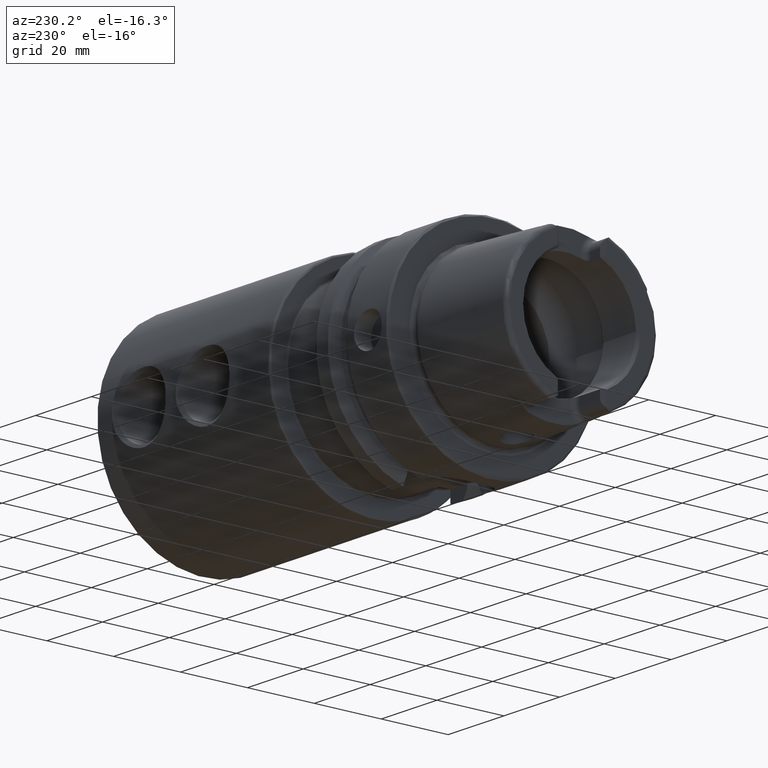
[diagram: clean part render]
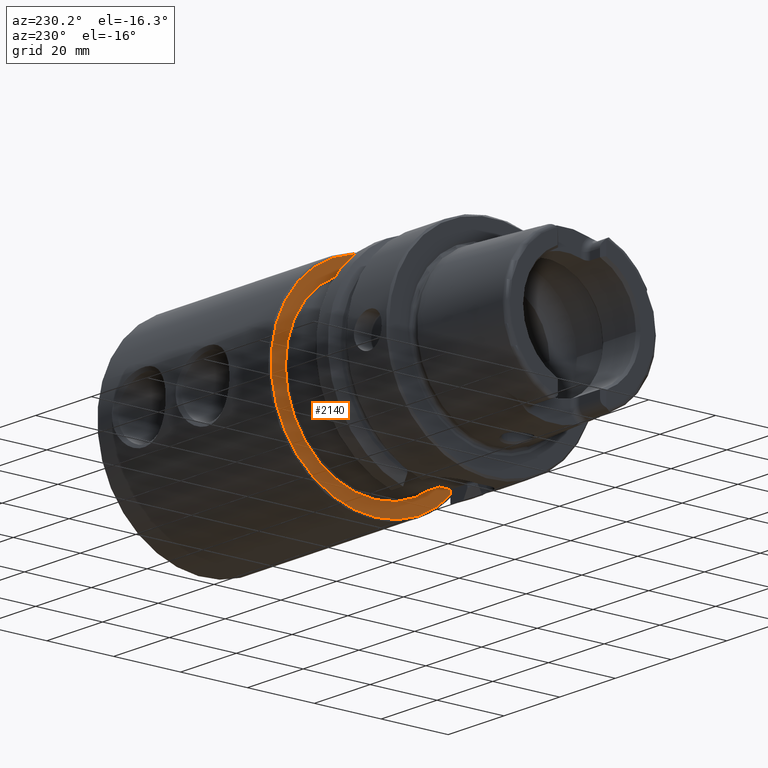
[diagram: same view with one face highlighted and labeled with its STEP entity id]
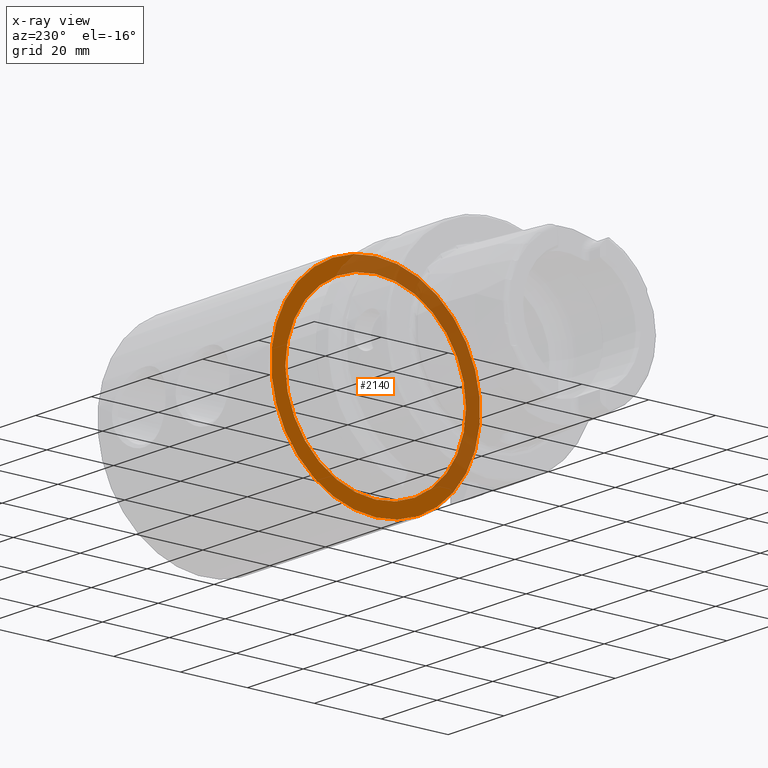
[diagram: x-ray of the same camera — body ghosted, the highlighted face saturated]
A machine part, auxiliary view. The second image highlights one B-rep face of the part: STEP entity #2140.
The next image is the same camera in x-ray: the body ghosted, the highlighted face saturated — about 43% of this face is hidden behind the body in this view.
In plain terms, the highlighted planar face has unit normal (-1, 0, 0).
Its self-contained STEP definition (entity closure, byte-faithful):
#29=PLANE('',#2299);
#100=FACE_BOUND('',#376,.T.);
#246=FACE_OUTER_BOUND('',#375,.T.);
#375=EDGE_LOOP('',(#1481));
#376=EDGE_LOOP('',(#1482));
#748=CIRCLE('',#2298,31.25);
#749=CIRCLE('',#2300,27.);
#890=VERTEX_POINT('',#3682);
#891=VERTEX_POINT('',#3686);
#1121=EDGE_CURVE('',#890,#890,#748,.T.);
#1122=EDGE_CURVE('',#891,#891,#749,.T.);
#1481=ORIENTED_EDGE('',*,*,#1121,.F.);
#1482=ORIENTED_EDGE('',*,*,#1122,.F.);
#2140=ADVANCED_FACE('',(#246,#100),#29,.T.);
#2298=AXIS2_PLACEMENT_3D('',#3684,#2593,#2594);
#2299=AXIS2_PLACEMENT_3D('',#3685,#2595,#2596);
#2300=AXIS2_PLACEMENT_3D('',#3687,#2597,#2598);
#2593=DIRECTION('center_axis',(1.,0.,0.));
#2594=DIRECTION('ref_axis',(0.,-1.,1.83697019872103E-16));
#2595=DIRECTION('center_axis',(-1.,0.,0.));
#2596=DIRECTION('ref_axis',(0.,0.,1.));
#2597=DIRECTION('center_axis',(-1.,0.,0.));
#2598=DIRECTION('ref_axis',(0.,-1.,1.83697019872103E-16));
#3682=CARTESIAN_POINT('',(42.,-3.82702124733548E-15,31.25));
#3684=CARTESIAN_POINT('Origin',(42.,0.,0.));
#3685=CARTESIAN_POINT('Origin',(42.,31.75,0.));
#3686=CARTESIAN_POINT('',(42.,-3.30654635769785E-15,27.));
#3687=CARTESIAN_POINT('Origin',(42.,0.,0.));